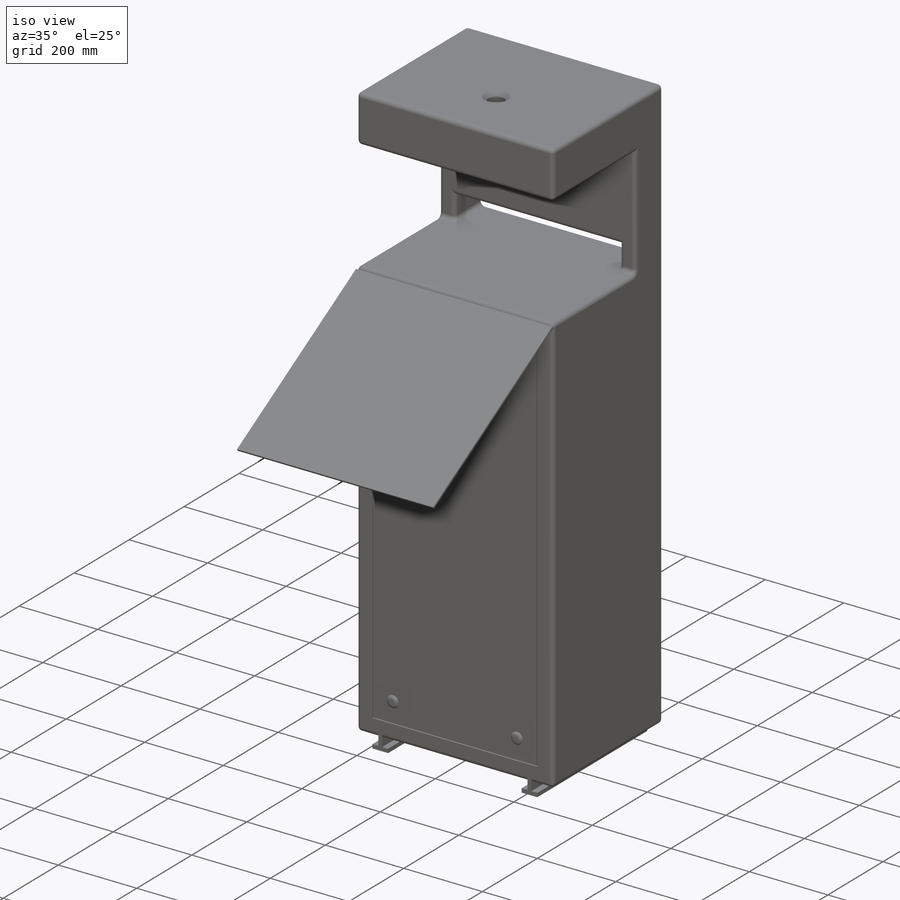
[diagram: iso view]
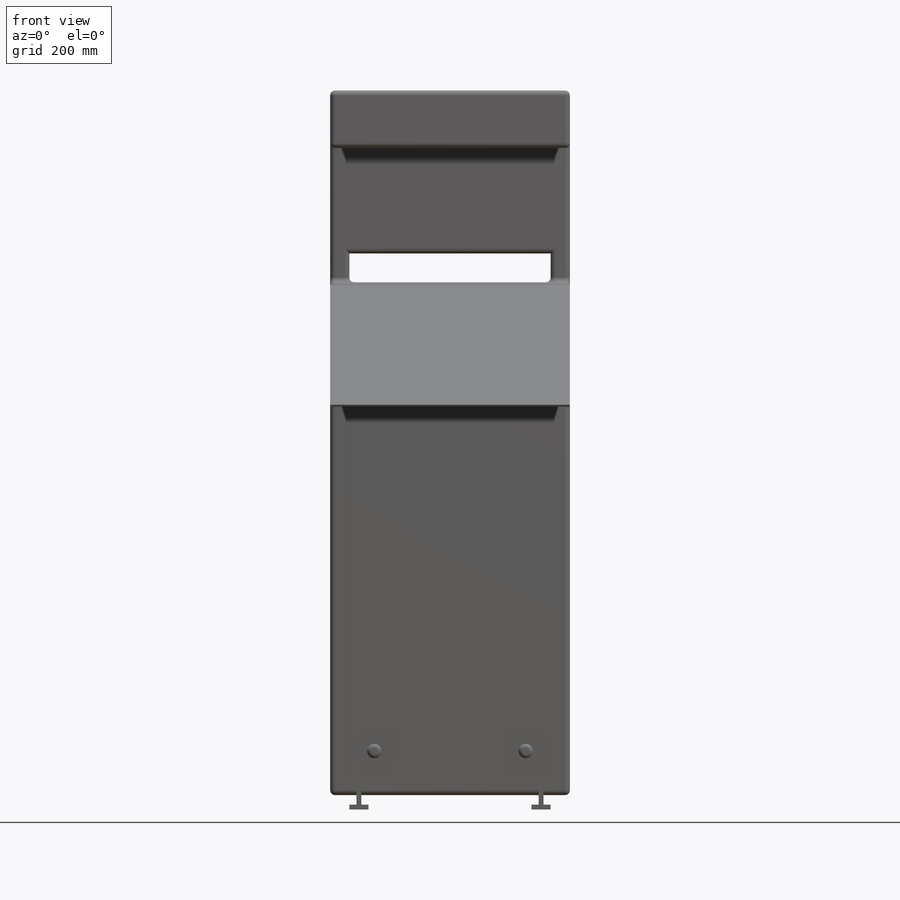
[diagram: front view]
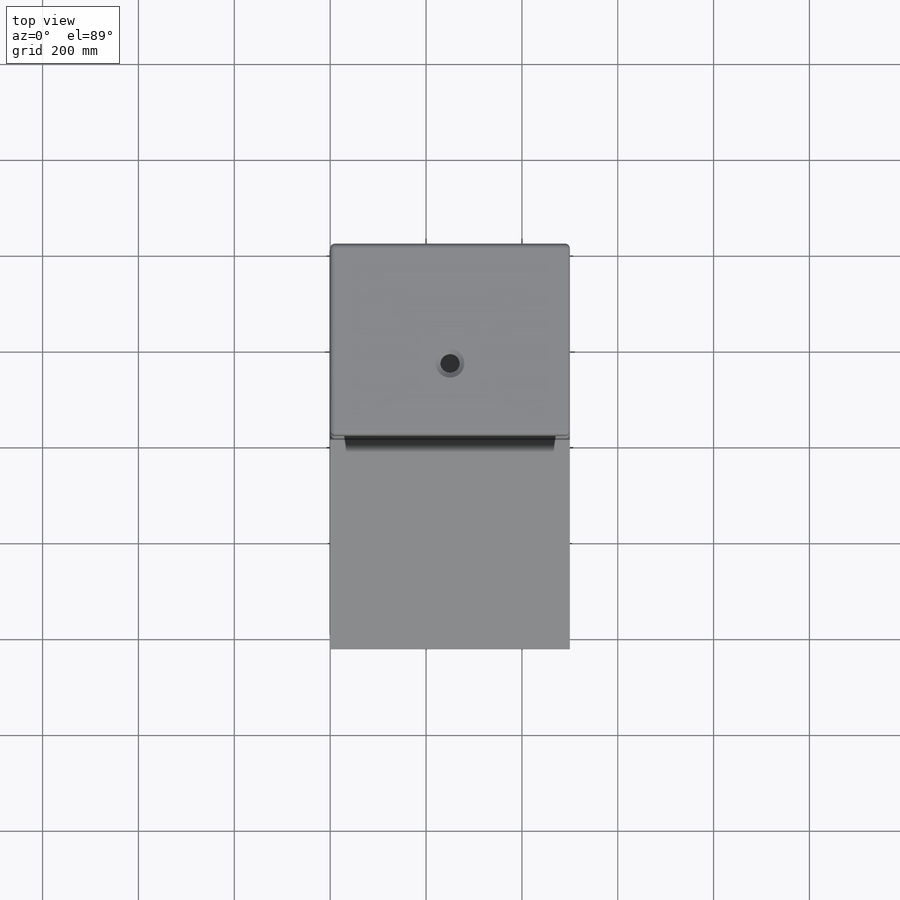
[diagram: top view]
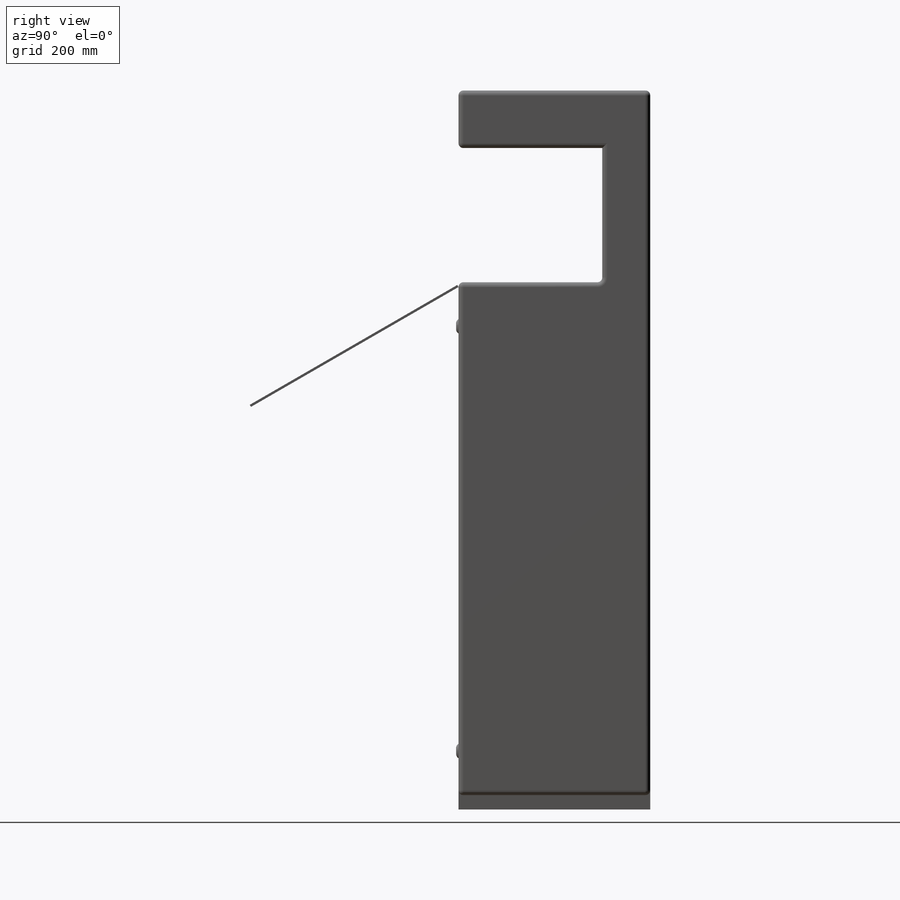
[diagram: right view]
SOLIDWORKS PART (.sldprt)
format: sldprt  version: not decoded by parser v0  size: 442,368 bytes
history: native  units: mm
features: sketch x8, extrude x4, cut_extrude x4, fillet x2, material x1, chamfer x1 (+12 scaffold rows collapsed)
feature tree (32):
  scaffold x12  (default folders/planes/origin — collapsed)
  material  "Material <not specified>"
  sketch  "Sketch1"  dims[D1=500.0mm D2=400.0mm]
  extrude  "Boss-Extrude1"  Depth=1100mm
  sketch  "Sketch2"  dims[D1=40.0mm D2=30.0mm D3=40.0mm D4=30.0mm D5=15.0mm D6=20.0mm D7=15.0mm D8=20.0mm D9=10.0mm D10=20.0mm D11=15.0mm D12=15.0mm D13=10.0mm D14=20.0mm D15=30.0mm]
  cut_extrude  "Cut-Extrude1"  [1 undecoded]
  sketch  "Sketch3"  dims[D1=40.0mm D2=2.0mm D3=2.0mm D4=40.0mm D5=40.0mm D6=2.0mm D7=40.0mm D8=2.0mm]
  cut_extrude  "Cut-Extrude2"  Depth=5mm
  sketch  "Sketch4"  dims[c1.D1=~16.548919mm c1.D3=30.0mm c2.D1=50.0mm c2.D2=50.0mm]
  extrude  "Boss-Extrude2"  Depth=5mm
  fillet  "Fillet1"  Radius=10mm
  sketch  "Sketch6"  dims[c1.D1=100.0mm c1.D2=400.0mm c1.D3=300.0mm c1.D4=120.0mm c2.D3=400.0mm]
  extrude  "Boss-Extrude3"  Depth=500mm
  sketch  "Sketch7"  dims[D1=40.0mm D2=40.0mm D3=60.0mm]
  cut_extrude  "Cut-Extrude3"  [1 undecoded]
  sketch  "Sketch8"  dims[D1=40.0mm]
  cut_extrude  "Cut-Extrude4"  Depth=120mm
  fillet  "Fillet2"  Radius=10mm
  chamfer  "Chamfer1"  Distance=10mm Angle=45deg
  sketch  "Sketch9"  dims[D1=500.0mm D2=5.0mm D3=250.0mm]
  extrude  "Boss-Extrude4"  Depth=500mm
decode coverage: 17 of 19 modeling features carry decoded parameters
note: ~ marks probable driven/reference dimensions
note: 2 parameter values undecoded
note: suppression state not decoded; provenance and decode notes live in map.json
